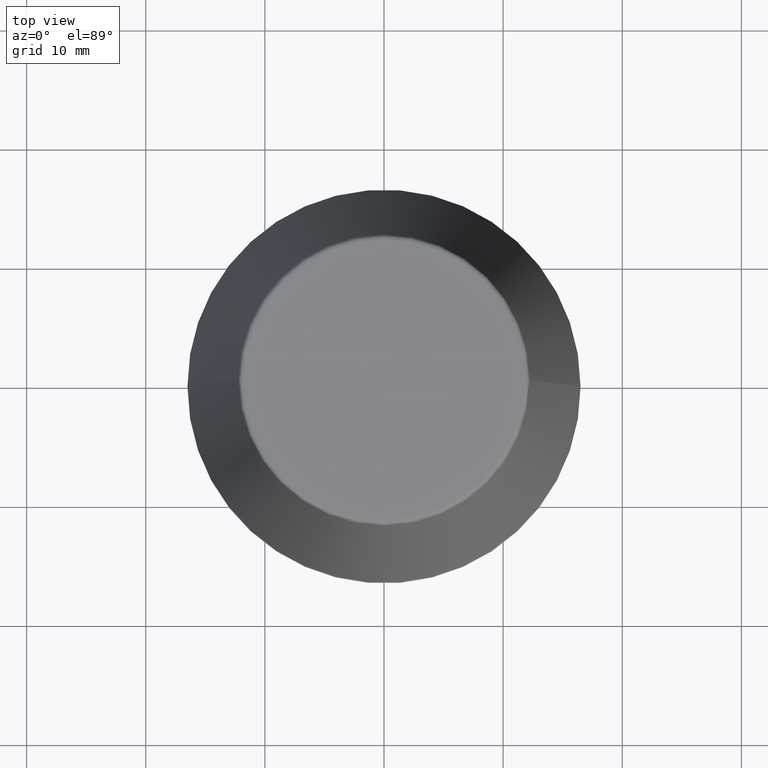
[diagram: clean part render]
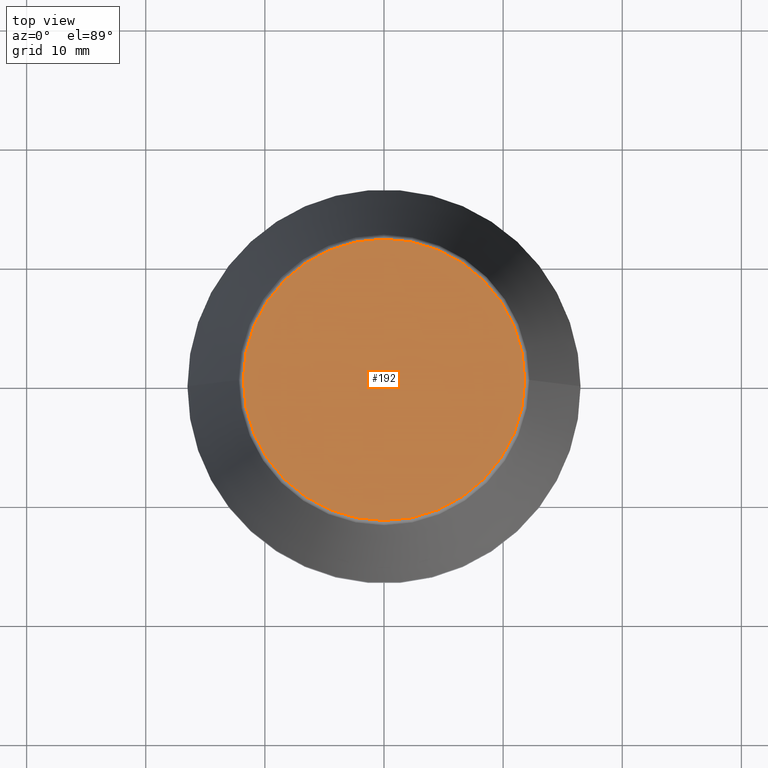
[diagram: same view with one face highlighted and labeled with its STEP entity id]
A machine part, top view. The second image highlights one B-rep face of the part: STEP entity #192.
In plain terms, the highlighted planar face has unit normal (0, 0, -1).
Its self-contained STEP definition (entity closure, byte-faithful):
#11 = CARTESIAN_POINT ( 'NONE',  ( 0.0000000000000000000, 0.0000000000000000000, 40.00000000000000700 ) ) ;
#13 = EDGE_LOOP ( 'NONE', ( #22, #373 ) ) ;
#22 = ORIENTED_EDGE ( 'NONE', *, *, #155, .T. ) ;
#23 = DIRECTION ( 'NONE',  ( 1.000000000000000000, 0.0000000000000000000, 0.0000000000000000000 ) ) ;
#29 = EDGE_CURVE ( 'NONE', #351, #325, #173, .T. ) ;
#72 = CARTESIAN_POINT ( 'NONE',  ( 0.0000000000000000000, 11.80989888411031400, 40.00000000000000700 ) ) ;
#80 = DIRECTION ( 'NONE',  ( -1.000000000000000000, 0.0000000000000000000, -0.0000000000000000000 ) ) ;
#82 = PLANE ( 'NONE',  #184 ) ;
#84 = CIRCLE ( 'NONE', #205, 11.80989888411031400 ) ;
#93 = CARTESIAN_POINT ( 'NONE',  ( 0.0000000000000000000, 0.0000000000000000000, 40.00000000000000700 ) ) ;
#153 = DIRECTION ( 'NONE',  ( -0.0000000000000000000, -0.0000000000000000000, 1.000000000000000000 ) ) ;
#155 = EDGE_CURVE ( 'NONE', #325, #351, #84, .T. ) ;
#173 = CIRCLE ( 'NONE', #241, 11.80989888411031400 ) ;
#182 = CARTESIAN_POINT ( 'NONE',  ( -11.80989888411031400, 1.470550059081603400E-015, 40.00000000000000700 ) ) ;
#184 = AXIS2_PLACEMENT_3D ( 'NONE', #72, #259, #80 ) ;
#192 = ADVANCED_FACE ( 'NONE', ( #322 ), #82, .F. ) ;
#205 = AXIS2_PLACEMENT_3D ( 'NONE', #93, #153, #252 ) ;
#241 = AXIS2_PLACEMENT_3D ( 'NONE', #11, #263, #23 ) ;
#252 = DIRECTION ( 'NONE',  ( 1.000000000000000000, 0.0000000000000000000, 0.0000000000000000000 ) ) ;
#259 = DIRECTION ( 'NONE',  ( 0.0000000000000000000, 0.0000000000000000000, -1.000000000000000000 ) ) ;
#263 = DIRECTION ( 'NONE',  ( -0.0000000000000000000, -0.0000000000000000000, 1.000000000000000000 ) ) ;
#311 = CARTESIAN_POINT ( 'NONE',  ( 11.80989888411031400, 0.0000000000000000000, 40.00000000000000700 ) ) ;
#322 = FACE_OUTER_BOUND ( 'NONE', #13, .T. ) ;
#325 = VERTEX_POINT ( 'NONE', #311 ) ;
#351 = VERTEX_POINT ( 'NONE', #182 ) ;
#373 = ORIENTED_EDGE ( 'NONE', *, *, #29, .T. ) ;